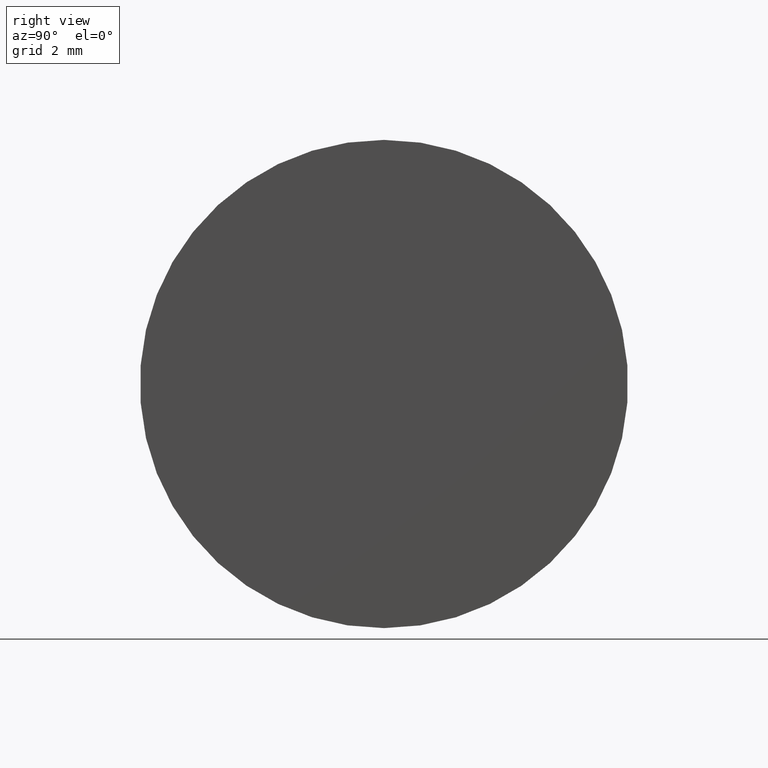
[diagram: clean part render]
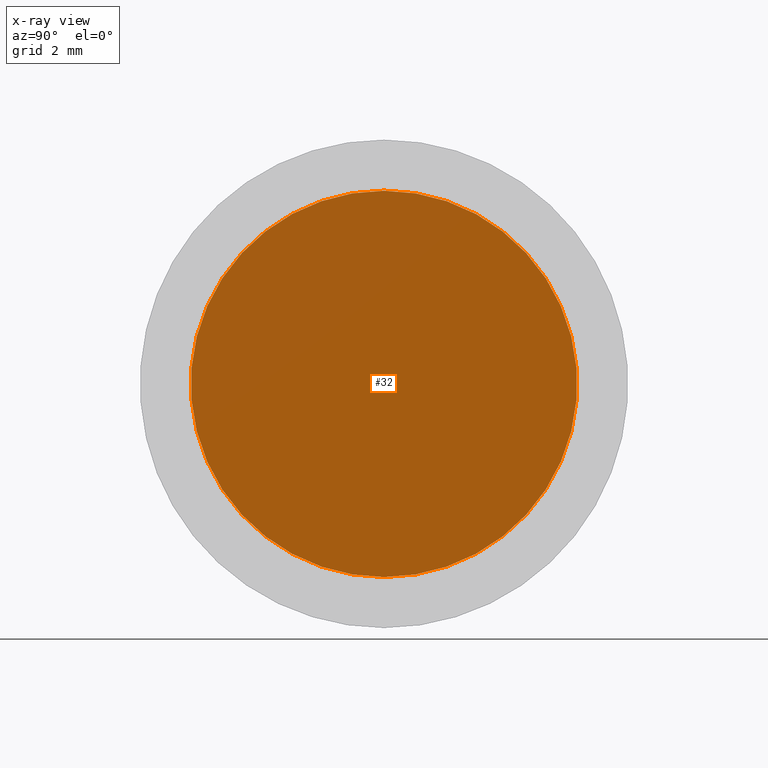
[diagram: x-ray — body ghosted, one internal face saturated and labeled with its STEP entity id]
A machine part, right view, then the same camera in x-ray: the body is ghosted and one INTERNAL B-rep face — a face not visible from any outside direction — is saturated and labeled: STEP entity #32.
In plain terms, the highlighted planar face has unit normal (1, 0, 0).
Its self-contained STEP definition (entity closure, byte-faithful):
#10 = DIRECTION ( 'NONE',  ( 1.000000000000000000, 0.0000000000000000000, 0.0000000000000000000 ) ) ;
#20 = EDGE_LOOP ( 'NONE', ( #138, #318 ) ) ;
#32 = ADVANCED_FACE ( 'NONE', ( #163 ), #418, .T. ) ;
#39 = DIRECTION ( 'NONE',  ( 0.0000000000000000000, 0.0000000000000000000, 1.000000000000000000 ) ) ;
#74 = EDGE_CURVE ( 'NONE', #130, #235, #252, .T. ) ;
#130 = VERTEX_POINT ( 'NONE', #546 ) ;
#138 = ORIENTED_EDGE ( 'NONE', *, *, #372, .F. ) ;
#163 = FACE_OUTER_BOUND ( 'NONE', #20, .T. ) ;
#207 = CARTESIAN_POINT ( 'NONE',  ( 228.7645190849216300, 108.2256958952383700, 5.025000000000002100 ) ) ;
#235 = VERTEX_POINT ( 'NONE', #207 ) ;
#252 = CIRCLE ( 'NONE', #636, 5.025000000000002100 ) ;
#318 = ORIENTED_EDGE ( 'NONE', *, *, #74, .F. ) ;
#320 = CARTESIAN_POINT ( 'NONE',  ( 228.7645190849216600, 2.527160560252560200E-012, 0.0000000000000000000 ) ) ;
#336 = CARTESIAN_POINT ( 'NONE',  ( 228.7645190849216300, 108.2256958952383700, 0.0000000000000000000 ) ) ;
#372 = EDGE_CURVE ( 'NONE', #235, #130, #568, .T. ) ;
#418 = PLANE ( 'NONE',  #594 ) ;
#467 = DIRECTION ( 'NONE',  ( 0.0000000000000000000, 0.0000000000000000000, -1.000000000000000000 ) ) ;
#534 = DIRECTION ( 'NONE',  ( -1.000000000000000000, -0.0000000000000000000, -0.0000000000000000000 ) ) ;
#546 = CARTESIAN_POINT ( 'NONE',  ( 228.7645190849216300, 108.2256958952383700, -5.025000000000002100 ) ) ;
#568 = CIRCLE ( 'NONE', #651, 5.025000000000002100 ) ;
#577 = DIRECTION ( 'NONE',  ( -1.000000000000000000, -0.0000000000000000000, -0.0000000000000000000 ) ) ;
#594 = AXIS2_PLACEMENT_3D ( 'NONE', #320, #10, #467 ) ;
#629 = DIRECTION ( 'NONE',  ( 0.0000000000000000000, 0.0000000000000000000, 1.000000000000000000 ) ) ;
#630 = CARTESIAN_POINT ( 'NONE',  ( 228.7645190849216300, 108.2256958952383700, 0.0000000000000000000 ) ) ;
#636 = AXIS2_PLACEMENT_3D ( 'NONE', #336, #534, #39 ) ;
#651 = AXIS2_PLACEMENT_3D ( 'NONE', #630, #577, #629 ) ;